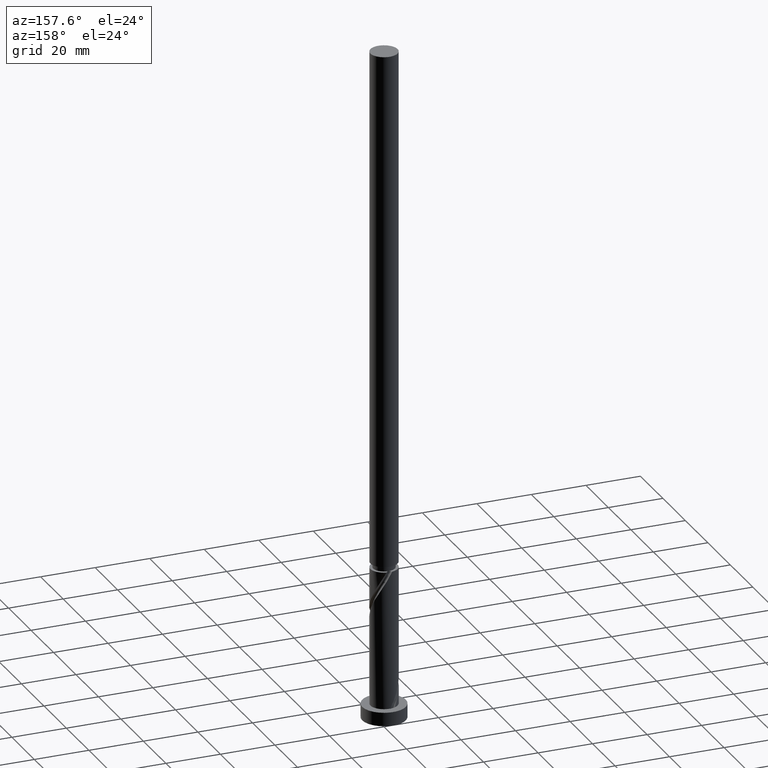
[diagram: clean part render]
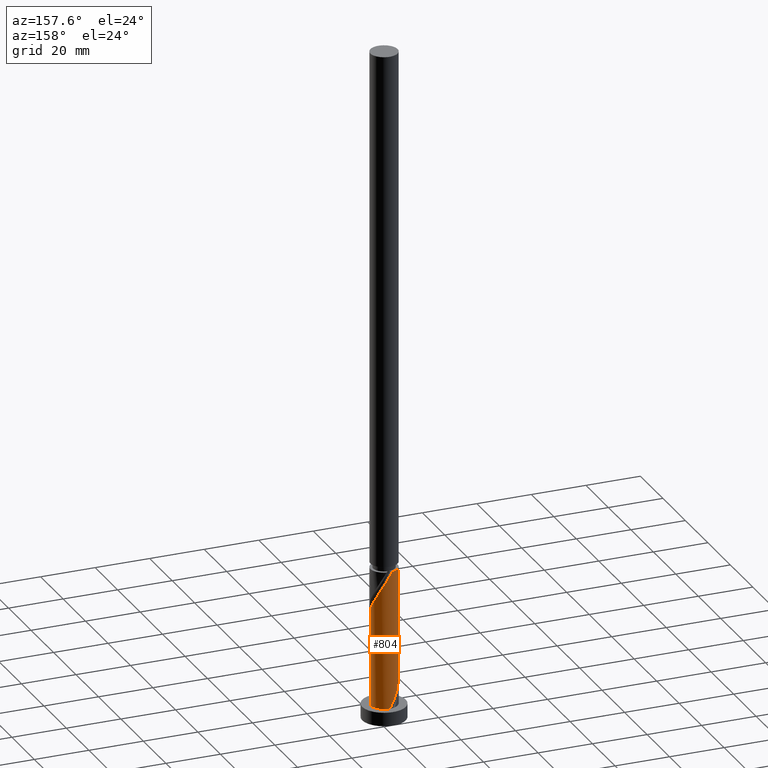
[diagram: same view with one face highlighted and labeled with its STEP entity id]
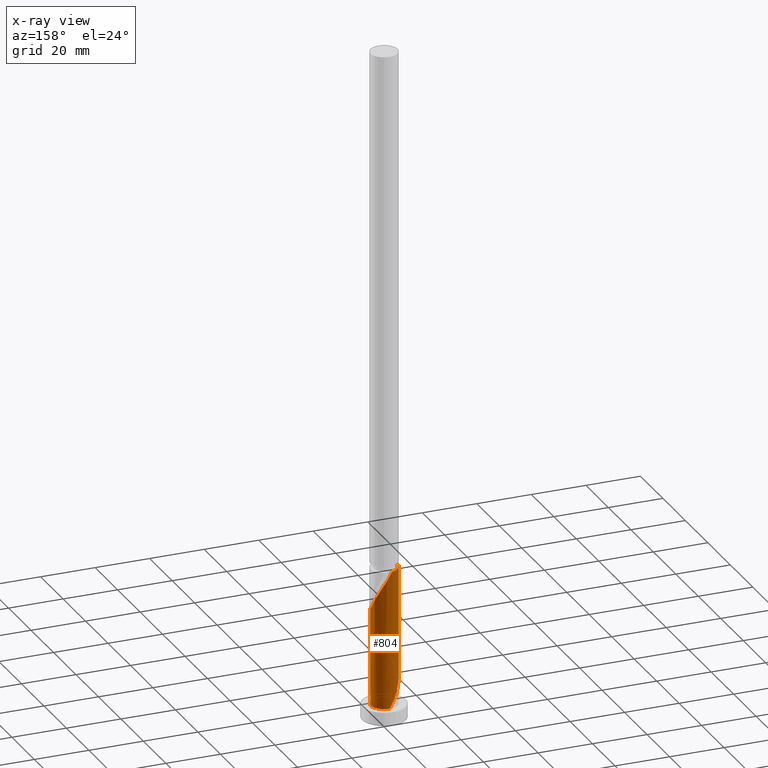
[diagram: x-ray of the same camera — body ghosted, the highlighted face saturated]
A machine part, auxiliary view. The second image highlights one B-rep face of the part: STEP entity #804.
The next image is the same camera in x-ray: the body ghosted, the highlighted face saturated — about 0% of this face is hidden behind the body in this view.
In plain terms, the highlighted cylindrical surface (edge-blend (fillet) strip) has radius 5 mm, axis along (-0, -0, -1).
Its self-contained STEP definition (entity closure, byte-faithful):
#1 = CARTESIAN_POINT ( 'NONE',  ( -4.999999999999998224, -2.320957782597394104E-15, 17.97929556936945872 ) ) ;
#11 = CARTESIAN_POINT ( 'NONE',  ( -0.6835131349569572023, 4.984996447238921213, 5.992278491463402190 ) ) ;
#80 = CARTESIAN_POINT ( 'NONE',  ( 2.277187526117665062, 4.451338784106884994, 50.05477849146339508 ) ) ;
#112 = CARTESIAN_POINT ( 'NONE',  ( -3.983038583135038113, 3.022483026463114619, 12.55477849146340397 ) ) ;
#124 = CARTESIAN_POINT ( 'NONE',  ( 5.000000000000000888, 0.5025189076296171509, 41.71853249252097839 ) ) ;
#136 = CARTESIAN_POINT ( 'NONE',  ( -0.1038634274770382365, 4.998948197966746498, 5.027399100320746328 ) ) ;
#143 = DIRECTION ( 'NONE',  ( 1.000000000000000000, 0.000000000000000000, 0.000000000000000000 ) ) ;
#156 = CARTESIAN_POINT ( 'NONE',  ( -0.08741305405219169933, 4.999235837403680272, 4.999999999999998224 ) ) ;
#172 = AXIS2_PLACEMENT_3D ( 'NONE', #1897, #308, #2029 ) ;
#197 = CIRCLE ( 'NONE', #2021, 5.000000000000000000 ) ;
#235 = CARTESIAN_POINT ( 'NONE',  ( 3.983038583135043442, 3.022483026463117284, 46.30477849146339508 ) ) ;
#249 = CARTESIAN_POINT ( 'NONE',  ( 1.775642098820956916, 4.707916197378421153, 50.99227849146339508 ) ) ;
#268 = CARTESIAN_POINT ( 'NONE',  ( 0.000000000000000000, 0.000000000000000000, 5.000000000000000000 ) ) ;
#272 = CARTESIAN_POINT ( 'NONE',  ( -4.787891840297520574, 1.547084842617162614, 15.36727849146339508 ) ) ;
#293 = CARTESIAN_POINT ( 'NONE',  ( -0.08741305405219169933, 4.999235837403680272, 4.999999999999998224 ) ) ;
#308 = DIRECTION ( 'NONE',  ( -0.000000000000000000, -0.000000000000000000, -1.000000000000000000 ) ) ;
#333 = ORIENTED_EDGE ( 'NONE', *, *, #1584, .T. ) ;
#339 =( BOUNDED_CURVE ( )  B_SPLINE_CURVE ( 2, ( #388, #1035, #1685, #272, #913, #1551, #112, #2040, #590, #1242, #1889, #429, #1728, #11, #621, #136, #156 ),
 .UNSPECIFIED., .F., .T. ) 
 B_SPLINE_CURVE_WITH_KNOTS ( ( 3, 2, 2, 2, 2, 2, 2, 2, 3 ),
 ( 0.4295303401299220281, 0.4375000000000000000, 0.4464285714285714524, 0.4553571428571428492, 0.4642857142857143016, 0.4732142857142856984, 0.4821428571428571508, 0.4910714285714285476, 0.4913337861494437853 ),
 .UNSPECIFIED. ) 
 CURVE ( )  GEOMETRIC_REPRESENTATION_ITEM ( )  RATIONAL_B_SPLINE_CURVE ( ( 0.9079949616361735476, 0.9039886423360368184, 0.9090909090909032875, 0.9033747362665784930, 0.9090909090909032875, 0.9033747362665784930, 0.9090909090909032875, 0.9033747362665784930, 0.9090909090909032875, 0.9033747362665784930, 0.9090909090909032875, 0.9033747362665784930, 0.9090909090909032875, 0.9033747362665784930, 0.9090909090909032875, 0.9089229447900400993, 0.9087648514315825876 ) ) 
 REPRESENTATION_ITEM ( '' )  );
#388 = CARTESIAN_POINT ( 'NONE',  ( -4.999999999999998224, -2.320957782597394104E-15, 17.97929556936945872 ) ) ;
#408 = CARTESIAN_POINT ( 'NONE',  ( 0.6835131349569600889, 4.984996447238926542, 52.86727849146338798 ) ) ;
#414 = CARTESIAN_POINT ( 'NONE',  ( 5.000000000000000000, 6.123233995736766282E-16, 247.0000000000000000 ) ) ;
#429 = CARTESIAN_POINT ( 'NONE',  ( -1.775642098820953585, 4.707916197378418488, 7.867278491463395973 ) ) ;
#459 = CARTESIAN_POINT ( 'NONE',  ( -0.9949874371050135835, 4.899999999984043342, 55.67977849146339508 ) ) ;
#543 = EDGE_CURVE ( 'NONE', #917, #772, #1358, .T. ) ;
#551 = CARTESIAN_POINT ( 'NONE',  ( -5.000000000000005329, 0.000000000000000000, 55.67977849146339508 ) ) ;
#554 = CARTESIAN_POINT ( 'NONE',  ( 0.1203115516804434404, 4.998552303470707336, 53.80477849146340930 ) ) ;
#566 = CARTESIAN_POINT ( 'NONE',  ( 2.778732953414373430, 4.194761370835347947, 49.11727849146336666 ) ) ;
#590 = CARTESIAN_POINT ( 'NONE',  ( -3.210609744079810923, 3.833012532097926695, 10.67977849146340041 ) ) ;
#621 = CARTESIAN_POINT ( 'NONE',  ( -0.1203115516804413865, 4.998552303470701119, 5.054778491463401302 ) ) ;
#629 = LINE ( 'NONE', #414, #774 ) ;
#711 = CARTESIAN_POINT ( 'NONE',  ( 5.000000000000000000, 6.123233995736766282E-16, 5.000000000000000000 ) ) ;
#713 = EDGE_CURVE ( 'NONE', #932, #818, #339, .T. ) ;
#724 = CARTESIAN_POINT ( 'NONE',  ( 1.229577616888958502, 4.846456322308676512, 51.92977849146339508 ) ) ;
#741 = DIRECTION ( 'NONE',  ( -0.000000000000000000, -0.000000000000000000, -1.000000000000000000 ) ) ;
#742 = CIRCLE ( 'NONE', #172, 5.000000000000006217 ) ;
#746 = CARTESIAN_POINT ( 'NONE',  ( 5.000000000000006217, 2.701565007396306944E-15, 40.88026141355734921 ) ) ;
#755 = CARTESIAN_POINT ( 'NONE',  ( -0.9949874371050135835, 4.899999999984043342, 55.67977849146339508 ) ) ;
#772 = VERTEX_POINT ( 'NONE', #459 ) ;
#774 = VECTOR ( 'NONE', #741, 1000.000000000000000 ) ;
#785 = ORIENTED_EDGE ( 'NONE', *, *, #713, .F. ) ;
#804 = ADVANCED_FACE ( 'NONE', ( #1092 ), #1738, .T. ) ;
#818 = VERTEX_POINT ( 'NONE', #293 ) ;
#834 = EDGE_LOOP ( 'NONE', ( #1088, #333, #1915, #785, #1953, #1007 ) ) ;
#883 = CARTESIAN_POINT ( 'NONE',  ( 3.642486534745258187, 3.471263693360514324, 47.24227849146340219 ) ) ;
#911 = DIRECTION ( 'NONE',  ( 0.000000000000000000, 0.000000000000000000, 1.000000000000000000 ) ) ;
#913 = CARTESIAN_POINT ( 'NONE',  ( -4.555741235911170861, 2.060393601091439209, 14.42977849146340574 ) ) ;
#917 = VERTEX_POINT ( 'NONE', #2075 ) ;
#932 = VERTEX_POINT ( 'NONE', #1 ) ;
#956 = CARTESIAN_POINT ( 'NONE',  ( -5.000000000000000000, 0.000000000000000000, 247.0000000000000000 ) ) ;
#966 = DIRECTION ( 'NONE',  ( -0.000000000000000000, -0.000000000000000000, -1.000000000000000000 ) ) ;
#1007 = ORIENTED_EDGE ( 'NONE', *, *, #1541, .T. ) ;
#1035 = CARTESIAN_POINT ( 'NONE',  ( -4.999999999999999112, 0.5025189076296042723, 17.14102449040585086 ) ) ;
#1046 = CARTESIAN_POINT ( 'NONE',  ( -0.4428900315960660472, 5.012108159702482801, 54.74227849146336666 ) ) ;
#1052 = EDGE_CURVE ( 'NONE', #1285, #932, #1452, .T. ) ;
#1080 = CARTESIAN_POINT ( 'NONE',  ( 4.787891840297525903, 1.547084842617162614, 43.49227849146338087 ) ) ;
#1088 = ORIENTED_EDGE ( 'NONE', *, *, #543, .F. ) ;
#1092 = FACE_OUTER_BOUND ( 'NONE', #834, .T. ) ;
#1113 = AXIS2_PLACEMENT_3D ( 'NONE', #1748, #1252, #1574 ) ;
#1216 = CARTESIAN_POINT ( 'NONE',  ( 4.555741235911176190, 2.060393601091440985, 44.42977849146341640 ) ) ;
#1242 = CARTESIAN_POINT ( 'NONE',  ( -2.778732953414368989, 4.194761370835343506, 9.742278491463402190 ) ) ;
#1252 = DIRECTION ( 'NONE',  ( -0.000000000000000000, -0.000000000000000000, -1.000000000000000000 ) ) ;
#1285 = VERTEX_POINT ( 'NONE', #551 ) ;
#1358 =( BOUNDED_CURVE ( )  B_SPLINE_CURVE ( 2, ( #746, #124, #1363, #1080, #1216, #1375, #235, #883, #1529, #566, #80, #249, #724, #408, #554, #1046, #755 ),
 .UNSPECIFIED., .F., .T. ) 
 B_SPLINE_CURVE_WITH_KNOTS ( ( 3, 2, 2, 2, 2, 2, 2, 2, 3 ),
 ( 0.6795303401299223056, 0.6875000000000000000, 0.6964285714285713969, 0.7053571428571427937, 0.7142857142857141906, 0.7232142857142855874, 0.7321428571428570953, 0.7410714285714284921, 0.7499999999999998890 ),
 .UNSPECIFIED. ) 
 CURVE ( )  GEOMETRIC_REPRESENTATION_ITEM ( )  RATIONAL_B_SPLINE_CURVE ( ( 0.9079949616361789877, 0.9039886423360425916, 0.9090909090909090606, 0.9033747362665842662, 0.9090909090909090606, 0.9033747362665842662, 0.9090909090909090606, 0.9033747362665842662, 0.9090909090909090606, 0.9033747362665842662, 0.9090909090909090606, 0.9033747362665842662, 0.9090909090909090606, 0.9033747362665842662, 0.9090909090909090606, 0.9033747362665843772, 0.9090909090909089496 ) ) 
 REPRESENTATION_ITEM ( '' )  );
#1363 = CARTESIAN_POINT ( 'NONE',  ( 4.900000000000005684, 0.9949874371066181888, 42.55477849146340219 ) ) ;
#1375 = CARTESIAN_POINT ( 'NONE',  ( 4.323590631524827366, 2.573702359565717135, 45.36727849146338087 ) ) ;
#1396 = VERTEX_POINT ( 'NONE', #711 ) ;
#1452 = LINE ( 'NONE', #956, #1615 ) ;
#1529 = CARTESIAN_POINT ( 'NONE',  ( 3.210609744079816696, 3.833012532097930691, 48.17977849146338798 ) ) ;
#1541 = EDGE_CURVE ( 'NONE', #1285, #772, #742, .T. ) ;
#1551 = CARTESIAN_POINT ( 'NONE',  ( -4.323590631524821148, 2.573702359565717135, 13.49227849146340219 ) ) ;
#1574 = DIRECTION ( 'NONE',  ( -1.000000000000000000, 0.000000000000000000, 0.000000000000000000 ) ) ;
#1584 = EDGE_CURVE ( 'NONE', #917, #1396, #629, .T. ) ;
#1615 = VECTOR ( 'NONE', #966, 1000.000000000000000 ) ;
#1685 = CARTESIAN_POINT ( 'NONE',  ( -4.899999999999999467, 0.9949874371066186329, 16.30477849146339508 ) ) ;
#1728 = CARTESIAN_POINT ( 'NONE',  ( -1.229577616888955172, 4.846456322308670295, 6.929778491463395085 ) ) ;
#1738 = CYLINDRICAL_SURFACE ( 'NONE', #1113, 5.000000000000000000 ) ;
#1748 = CARTESIAN_POINT ( 'NONE',  ( 0.000000000000000000, 0.000000000000000000, 247.0000000000000000 ) ) ;
#1834 = EDGE_CURVE ( 'NONE', #1396, #818, #197, .T. ) ;
#1889 = CARTESIAN_POINT ( 'NONE',  ( -2.277187526117661065, 4.451338784106880553, 8.804778491463396861 ) ) ;
#1897 = CARTESIAN_POINT ( 'NONE',  ( 0.000000000000000000, 0.000000000000000000, 55.67977849146339508 ) ) ;
#1915 = ORIENTED_EDGE ( 'NONE', *, *, #1834, .T. ) ;
#1953 = ORIENTED_EDGE ( 'NONE', *, *, #1052, .F. ) ;
#2021 = AXIS2_PLACEMENT_3D ( 'NONE', #268, #911, #143 ) ;
#2029 = DIRECTION ( 'NONE',  ( -1.000000000000000000, 0.000000000000000000, 0.000000000000000000 ) ) ;
#2040 = CARTESIAN_POINT ( 'NONE',  ( -3.642486534745253746, 3.471263693360512548, 11.61727849146339686 ) ) ;
#2075 = CARTESIAN_POINT ( 'NONE',  ( 5.000000000000006217, 2.701565007396306944E-15, 40.88026141355734921 ) ) ;